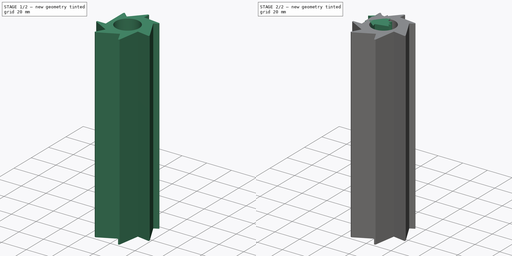
[diagram: build sequence overview — one tinted view per stage of 2, left to right]
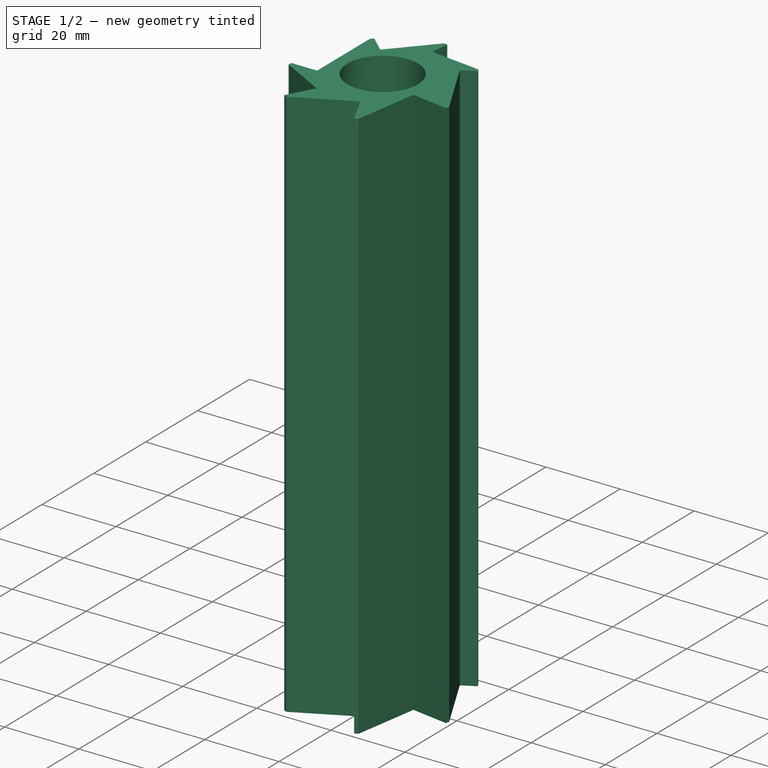
[diagram: stage 1 of 2 — iso view after this stage's code; geometry added in this stage tinted green]
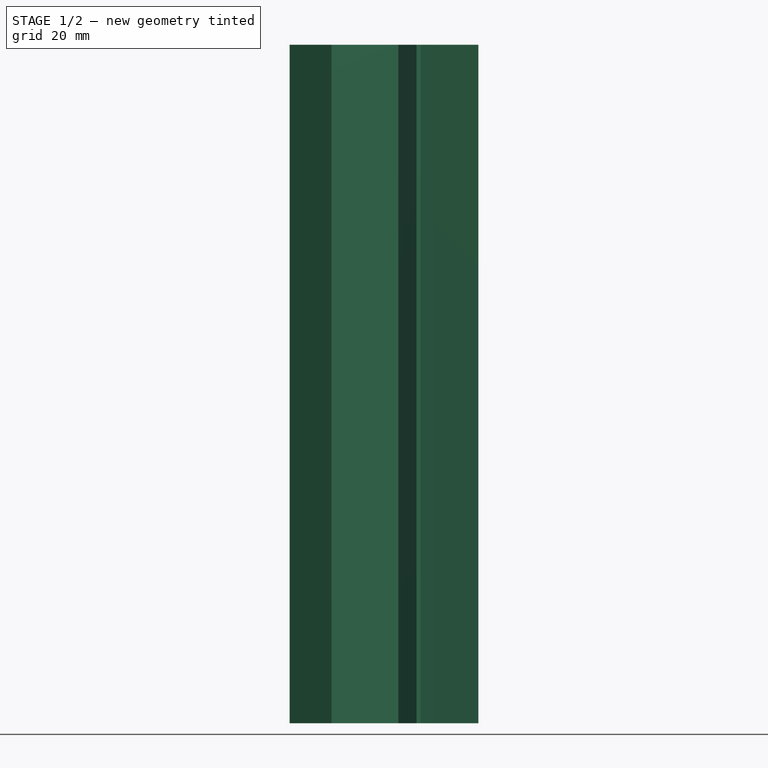
[diagram: stage 1 of 2 — front view after this stage's code; geometry added in this stage tinted green]
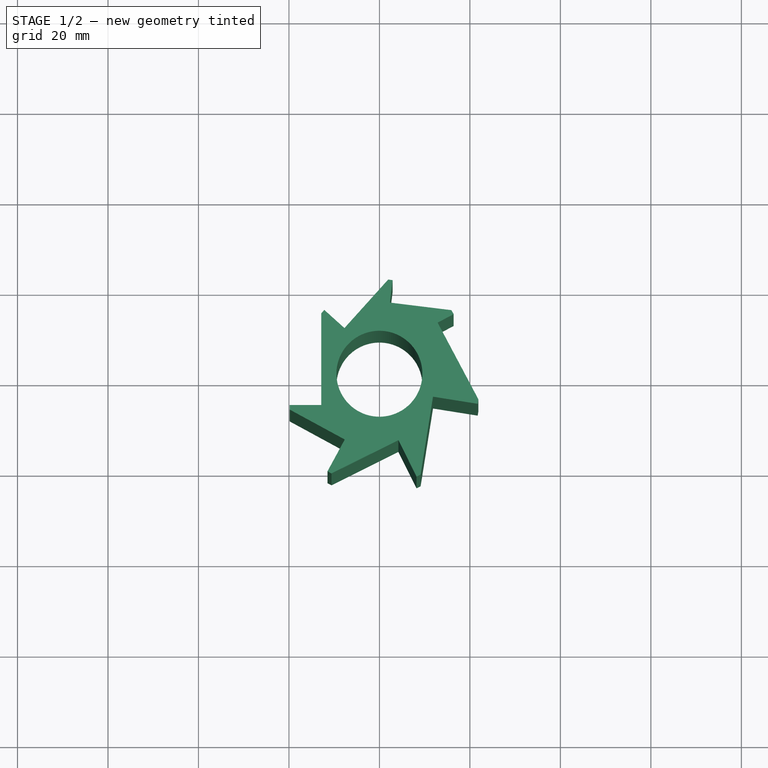
[diagram: stage 1 of 2 — top view after this stage's code; geometry added in this stage tinted green]
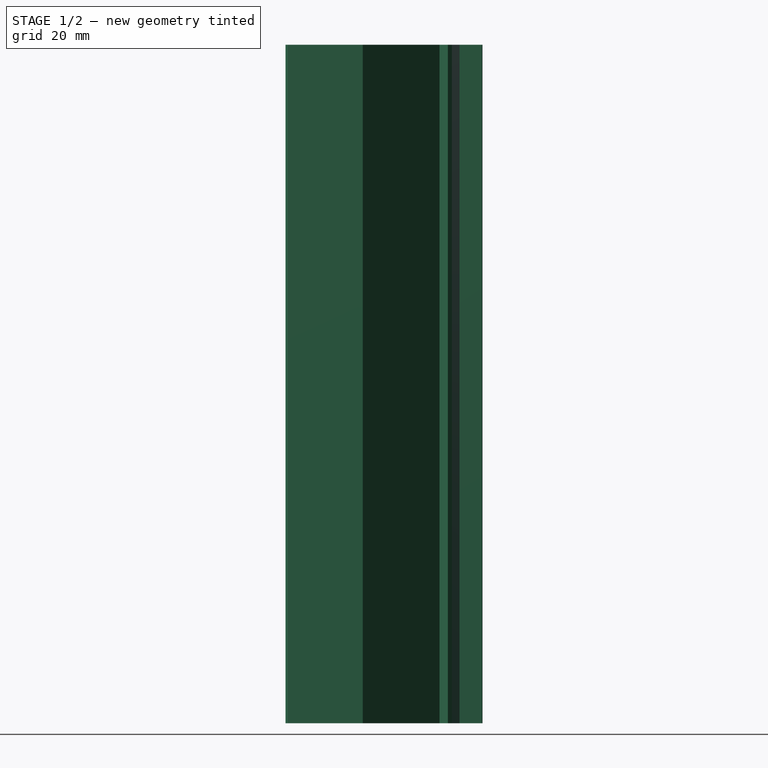
[diagram: stage 1 of 2 — right view after this stage's code; geometry added in this stage tinted green]
FCSTD DOCUMENT  (FreeCAD 1.1R42461 (Git))
Label: Tracette Herisson v1
License: Creative Commons Attribution-NonCommercial-ShareAlike 4.0
LicenseURL: https://creativecommons.org/licenses/by-nc-sa/4.0/
objects: App::Point×3, Sketcher::SketchObject×3, PartDesign::Body×3, PartDesign::Pad×2, App::VarSet×1
note: 15 computed .brp shape members not serialized (recipe doc carries the construction recipe); baked Part::Feature solids carry a one-line shape summary decoded from their .brp

FEATURE [PartDesign::Body] Body
  AllowCompound = false
  Group = -> [Sketch,Pad]
  Origin = -> Origin
  Tip = -> Pad
FEATURE [App::Point] Origin003  label="Origine002"
  Role = Origin
FEATURE [Sketcher::SketchObject] Sketch001
  ArcFitTolerance = 1e-06
  AttachmentSupport = -> [Origin002]
  ExternalTypes = [0]
  FullyConstrained = true
  MakeInternals = false
  MapMode = 5
  expr: Constraints[12] = VarSet.Start + 4 * VarSet.Step
  expr: Constraints[13] = VarSet.Start + 5 * VarSet.Step
  expr: Constraints[19] = VarSet.Start + 6 * VarSet.Step
  expr: Constraints[1] = VarSet.Start + 2 * VarSet.Step
  expr: Constraints[26] = VarSet.Start + 7 * VarSet.Step
  expr: Constraints[27] = VarSet.Start + 8 * VarSet.Step
  expr: Constraints[37] = VarSet.Rebord
  expr: Constraints[89] = VarSet.Start + 3 * VarSet.Step
  sketch-geometry (37):
    g0: LineSegment StartX=12.8715 StartY=11.2952 StartZ=0 EndX=16.4039 EndY=13.172 EndZ=0
    g1: LineSegment StartX=2.31126 StartY=15.7319 StartZ=0 EndX=2.92206 EndY=20.6944 EndZ=0
    g2: LineSegment StartX=2.92206 StartY=20.6944 StartZ=0 EndX=1.92955 EndY=20.8166 EndZ=0
    g3: LineSegment StartX=1.92955 StartY=20.8166 StartZ=0 EndX=-7.72675 EndY=10.0985 EndZ=0
    g4: LineSegment StartX=-7.72675 StartY=10.0985 StartZ=0 EndX=-12.1844 EndY=14.1146 EndZ=0
    g5: LineSegment StartX=-12.1844 StartY=14.1146 StartZ=0 EndX=-12.8538 EndY=13.3717 EndZ=0
    g6: LineSegment StartX=-12.8538 StartY=13.3717 StartZ=0 EndX=-12.8538 EndY=-6.91169 EndZ=0
    g7: LineSegment StartX=-12.8538 StartY=-6.91169 StartZ=0 EndX=-19.8538 EndY=-6.91169 EndZ=0
    g8: LineSegment StartX=-19.8538 StartY=-6.91169 StartZ=0 EndX=-19.8538 EndY=-7.91169 EndZ=0
    g9: LineSegment StartX=-19.8538 StartY=-7.91169 StartZ=0 EndX=-7.6571 EndY=-14.5417 EndZ=0
    g10: LineSegment StartX=-7.6571 StartY=-14.5417 StartZ=0 EndX=-11.4778 EndY=-21.5704 EndZ=0
    g11: LineSegment StartX=-11.4778 StartY=-21.5704 StartZ=0 EndX=-10.5992 EndY=-22.048 EndZ=0
    g12: LineSegment StartX=-10.5992 StartY=-22.048 StartZ=0 EndX=4.19501 EndY=-14.6809 EndZ=0
    g13: LineSegment StartX=4.19501 StartY=-14.6809 StartZ=0 EndX=8.20683 EndY=-22.7373 EndZ=0
    g14: LineSegment StartX=8.20683 StartY=-22.7373 StartZ=0 EndX=9.10199 EndY=-22.2915 EndZ=0
    g15: LineSegment StartX=9.10199 StartY=-22.2915 StartZ=0 EndX=11.8486 EndY=-5.07389 EndZ=0
    g16: LineSegment StartX=11.8486 StartY=-5.07389 StartZ=0 EndX=21.7238 EndY=-6.64922 EndZ=0
    g17: LineSegment StartX=21.7238 StartY=-6.64922 StartZ=0 EndX=21.8813 EndY=-5.66171 EndZ=0
    g18: LineSegment StartX=12.8715 StartY=11.2952 StartZ=0 EndX=21.8813 EndY=-5.66171 EndZ=0
    g19: LineSegment [constr] StartX=9.10199 StartY=-22.2915 StartZ=0 EndX=25.4574 EndY=-14.147 EndZ=0
    g20: LineSegment [constr] StartX=21.7238 StartY=-6.64922 StartZ=0 EndX=25.4574 EndY=-14.147 EndZ=0
    g21: LineSegment [constr] StartX=-10.5992 StartY=-22.048 StartZ=0 EndX=4.20655 EndY=-30.0963 EndZ=0
    g22: LineSegment [constr] StartX=4.20655 StartY=-30.0963 StartZ=0 EndX=8.20683 EndY=-22.7373 EndZ=0
    g23: LineSegment [constr] StartX=-19.8538 StartY=-7.91169 StartZ=0 EndX=-19.8538 EndY=-21.5704 EndZ=0
    g24: LineSegment [constr] StartX=-19.8538 StartY=-21.5704 StartZ=0 EndX=-11.4778 EndY=-21.5704 EndZ=0
    g25: LineSegment [constr] StartX=-12.8538 StartY=13.3717 StartZ=0 EndX=-26.0767 EndY=-1.30525 EndZ=0
    g26: LineSegment [constr] StartX=-19.8538 StartY=-6.91169 StartZ=0 EndX=-26.0767 EndY=-1.30525 EndZ=0
    g27: LineSegment [constr] StartX=1.92955 StartY=20.8166 StartZ=0 EndX=-11.1612 EndY=22.4278 EndZ=0
    g28: LineSegment [constr] StartX=-11.1612 StartY=22.4278 StartZ=0 EndX=-12.1844 EndY=14.1146 EndZ=0
    g29: LineSegment StartX=16.4039 StartY=13.172 StartZ=0 EndX=15.9347 EndY=14.0551 EndZ=0
    g30: LineSegment StartX=15.9347 StartY=14.0551 StartZ=0 EndX=2.31126 EndY=15.7319 EndZ=0
    g31: LineSegment [constr] StartX=21.8813 StartY=-5.66171 StartZ=0 EndX=24.6753 EndY=11.8525 EndZ=0
    g32: LineSegment [constr] StartX=24.6753 StartY=11.8525 StartZ=0 EndX=16.4039 EndY=13.172 EndZ=0
    g33: LineSegment [constr] StartX=15.9347 StartY=14.0551 StartZ=0 EndX=10.3188 EndY=24.6246 EndZ=0
    g34: LineSegment [constr] StartX=10.3188 StartY=24.6246 StartZ=0 EndX=2.92206 EndY=20.6944 EndZ=0
    g35: Circle CenterX=0 CenterY=0 CenterZ=0 NormalX=0 NormalY=0 NormalZ=1 AngleXU=0 Radius=9.5
    g36: Circle [constr] CenterX=0 CenterY=0 CenterZ=0 NormalX=0 NormalY=0 NormalZ=1 AngleXU=0 Radius=12.5
  constraints (106):
    c: Coincident(g2,g3)
    c: Distance(g0,g0) = 4
    c: Coincident(g3,g4)
    c: Coincident(g4,g5)
    c: Coincident(g5,g6)
    c: Coincident(g6,g7)
    c: Coincident(g7,g8)
    c: Coincident(g8,g9)
    c: Equal(g2,g5)
    c: Equal(g5,g8)
    c: Perpendicular(g5,g4)
    c: Perpendicular(g7,g8)
    c: Distance(g4,g4) = 6
    c: Distance(g7,g7) = 7
    c: Coincident(g9,g10)
    c: Coincident(g10,g11)
    c: Coincident(g11,g12)
    c: Equal(g8,g11)
    c: Perpendicular(g10,g11)
    c: Distance(g10,g10) = 8
    c: Coincident(g12,g13)
    c: Coincident(g13,g14)
    c: Coincident(g14,g15)
    c: Coincident(g15,g16)
    c: Equal(g11,g14)
    c: Perpendicular(g14,g13)
    c: Distance(g13,g13) = 9
    c: Distance(g16,g16) = 10
    c: Perpendicular(g13,g12)
    c: Perpendicular(g9,g10)
    c: Perpendicular(g6,g7)
    c: Perpendicular(g3,g4)
    c: Perpendicular(g15,g16)
    c: Coincident(g17,g16)
    c: Perpendicular(g17,g16)
    c: Equal(g17,g14)
    c: Coincident(g18,g17)
    c: Distance(g11,g11) = 1
    c: Coincident(g19,g14)
    c: Coincident(g20,g16)
    c: Coincident(g20,g19)
    c: Perpendicular(g20,g19)
    c: PointOnObject(g13,g19)
    c: Coincident(g21,g11)
    c: Coincident(g22,g21)
    c: Coincident(g22,g13)
    c: Perpendicular(g22,g21)
    c: PointOnObject(g10,g21)
    c: Equal(g22,g20)
    c: Coincident(g23,g8)
    c: Vertical(g23)
    c: Coincident(g24,g23)
    c: Coincident(g24,g10)
    c: Perpendicular(g23,g24)
    c: PointOnObject(g7,g23)
    c: Equal(g24,g22)
    c: Coincident(g25,g5)
    c: Coincident(g26,g7)
    c: Coincident(g26,g25)
    c: PointOnObject(g4,g25)
    c: Perpendicular(g26,g25)
    c: Equal(g26,g24)
    c: Coincident(g2,g27)
    c: Coincident(g27,g28)
    c: Coincident(g28,g4)
    c: Perpendicular(g27,g28)
    c: Equal(g26,g28)
    c: PointOnObject(g2,g27)
    c: Coincident(g29,g0)
    c: Coincident(g30,g29)
    c: Coincident(g30,g1)
    c: Coincident(g17,g31)
    c: PointOnObject(g16,g31)
    c: Coincident(g18,g0)
    c: Coincident(g32,g31)
    c: Coincident(g32,g0)
    c: Perpendicular(g32,g31)
    c: Equal(g20,g32)
    c: Perpendicular(g0,g18)
    c: Equal(g17,g29)
    c: Perpendicular(g0,g29)
    c: Coincident(g29,g33)
    c: Coincident(g33,g34)
    c: Coincident(g34,g1)
    c: Perpendicular(g34,g33)
    c: Equal(g34,g32)
    c: PointOnObject(g0,g33)
    c: Coincident(g2,g1)
    c: Perpendicular(g1,g2)
    c: Distance(g1,g1) = 5
    c: Angle(g6,g4) = 0.837465
    c: Angle(g12,g10) = 0.610865  'Alpha'
    c: Angle(g9,g7) = 0.49791
    c: Angle(g15,g13) = 0.620214
    c: Angle(g30,g0) = 0.610865
    c: Angle(g3,g1) = 0.610865
    c: Angle(g18,g16) = 0.924204
    c: Perpendicular(g1,g30)
    c: Coincident(g35,g-1)
    c: Coincident(g36,g35)
    c: Diameter(g36) = 25
    c: Distance(g35,g36) = 3
    c: Distance(g1,g4) = 15
    c: Distance(g16,g0) = 20
    c: Tangent(g15,g36)
    c: Tangent(g3,g36)
FEATURE [PartDesign::Pad] Pad001
  Direction = (0,0,1)
  Length = 150
  Length2 = 10
  Profile = -> Sketch001
  ReferenceAxis = -> Sketch001 [N_Axis]
  Refine = true
  Suppressed = false
  Type = 0
FEATURE [PartDesign::Body] Body001  label="Corps"
  AllowCompound = false
  Group = -> [Sketch001,Pad001]
  Origin = -> Origin002
  Tip = -> Pad001
FEATURE [App::Point] Origin005  label="Origine004"
  Role = Origin
FEATURE [Sketcher::SketchObject] Sketch002
  ArcFitTolerance = 1e-06
  AttachmentSupport = -> [Origin004]
  ExternalTypes = [0]
  FullyConstrained = false
  MakeInternals = false
  MapMode = 5
  sketch-geometry (15):
    g0: Circle [constr] CenterX=0 CenterY=0 CenterZ=0 NormalX=0 NormalY=0 NormalZ=1 AngleXU=0 Radius=12.5
    g1: LineSegment StartX=10.9111 StartY=6.09907 StartZ=0 EndX=15.2755 EndY=8.5387 EndZ=0
    g2: LineSegment [constr] StartX=10.9111 StartY=6.09907 StartZ=0 EndX=35.1253 EndY=-37.2196 EndZ=0
    g3: LineSegment StartX=7.91278 StartY=10.7029 StartZ=0 EndX=10.7329 EndY=20.297 EndZ=0
    g4: LineSegment [constr] StartX=7.91278 StartY=10.7029 StartZ=0 EndX=15.2755 EndY=8.5387 EndZ=0
    g5: LineSegment StartX=-3.87616 StartY=12.1506 StartZ=0 EndX=-11.1815 EndY=25.2514 EndZ=0
    g6: LineSegment [constr] StartX=-3.87616 StartY=12.1506 StartZ=0 EndX=10.7329 EndY=20.297 EndZ=0
    g7: LineSegment StartX=-12.0428 StartY=8.97217 StartZ=0 EndX=-32.0149 EndY=10.0288 EndZ=0
    g8: LineSegment [constr] StartX=-12.0428 StartY=8.97217 StartZ=0 EndX=-11.1815 EndY=25.2514 EndZ=0
    g9: LineSegment StartX=-13.3809 StartY=-5.20601 StartZ=0 EndX=-29.2049 EndY=-24.5606 EndZ=0
    g10: LineSegment [constr] StartX=-13.3809 StartY=-5.20601 StartZ=0 EndX=-32.0149 EndY=10.0288 EndZ=0
    g11: LineSegment [constr] StartX=-19.5454 StartY=-20.864 StartZ=0 EndX=-29.2049 EndY=-24.5606 EndZ=0
    g12: LineSegment StartX=-19.5454 StartY=-20.864 StartZ=0 EndX=-8.823 EndY=-48.8824 EndZ=0
    g13: LineSegment StartX=3.35481 StartY=-22.5351 StartZ=0 EndX=35.1253 EndY=-37.2196 EndZ=0
    g14: LineSegment [constr] StartX=3.35481 StartY=-22.5351 StartZ=0 EndX=-8.823 EndY=-48.8824 EndZ=0
  constraints (38):
    c: Diameter(g0) = 25
    c: Coincident(g0,g-1)
    c: PointOnObject(g0,g1)
    c: Coincident(g2,g1)
    c: Tangent(g2,g0)
    c: Perpendicular(g1,g2)
    c: Coincident(g4,g3)
    c: Coincident(g6,g5)
    c: Coincident(g8,g7)
    c: Coincident(g10,g9)
    c: Coincident(g14,g13)
    c: Perpendicular(g3,g4)
    c: Perpendicular(g5,g6)
    c: Perpendicular(g7,g8)
    c: Perpendicular(g9,g10)
    c: Perpendicular(g13,g14)
    c: Distance(g1,g1) = 5
    c: Distance(g3,g3) = 10
    c: Tangent(g4,g0)
    c: Distance(g5,g5) = 15
    c: Tangent(g0,g6)
    c: Distance(g7,g7) = 20
    c: Tangent(g8,g0)
    c: Coincident(g5,g8)
    c: Coincident(g6,g3)
    c: Coincident(g4,g1)
    c: Coincident(g10,g7)
    c: Coincident(g11,g9)
    c: Coincident(g12,g14)
    c: Coincident(g13,g2)
    c: Tangent(g14,g0)
    c: Tangent(g11,g0)
    c: Tangent(g10,g0)
    c: Distance(g9,g9) = 25
    c: Distance(g12,g12) = 30
    c: Coincident(g11,g12)
    c: Perpendicular(g12,g11)
    c: Distance(g13,g13) = 35
FEATURE [PartDesign::Body] Body002  label="Corps001"
  AllowCompound = false
  Group = -> [Sketch002]
  Origin = -> Origin004
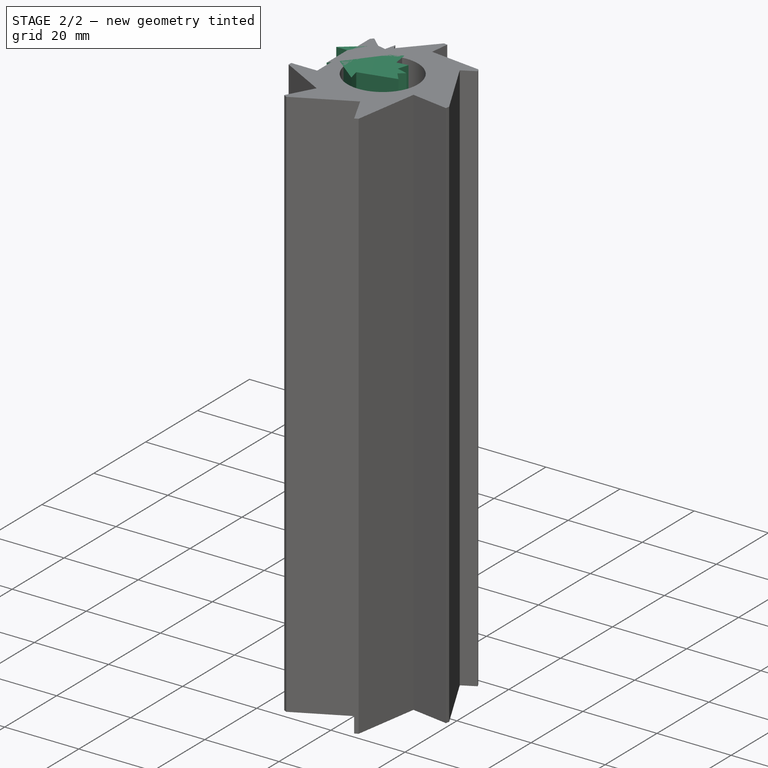
[diagram: stage 2 of 2 — iso view after this stage's code; geometry added in this stage tinted green]
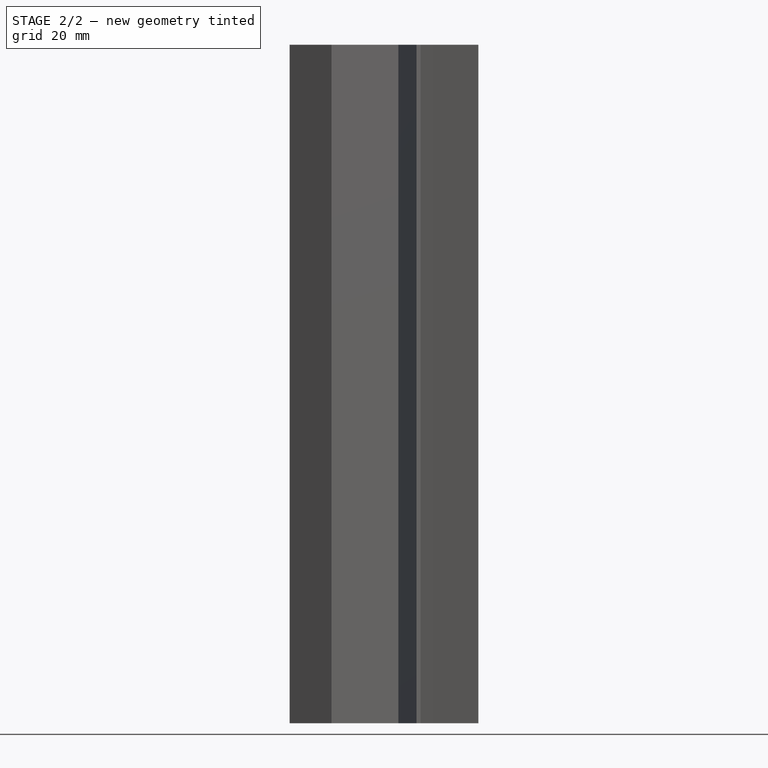
[diagram: stage 2 of 2 — front view after this stage's code; geometry added in this stage tinted green]
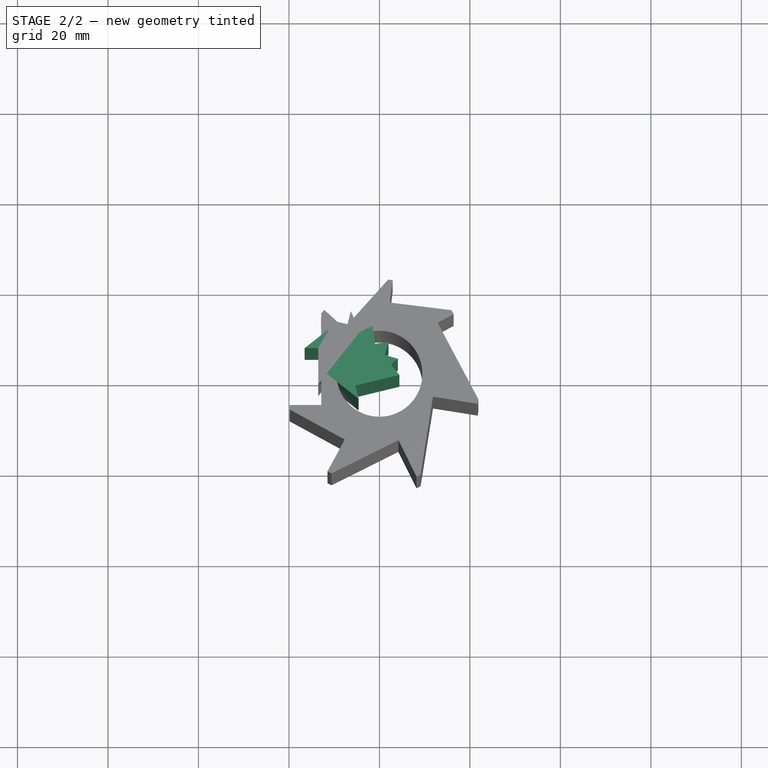
[diagram: stage 2 of 2 — top view after this stage's code; geometry added in this stage tinted green]
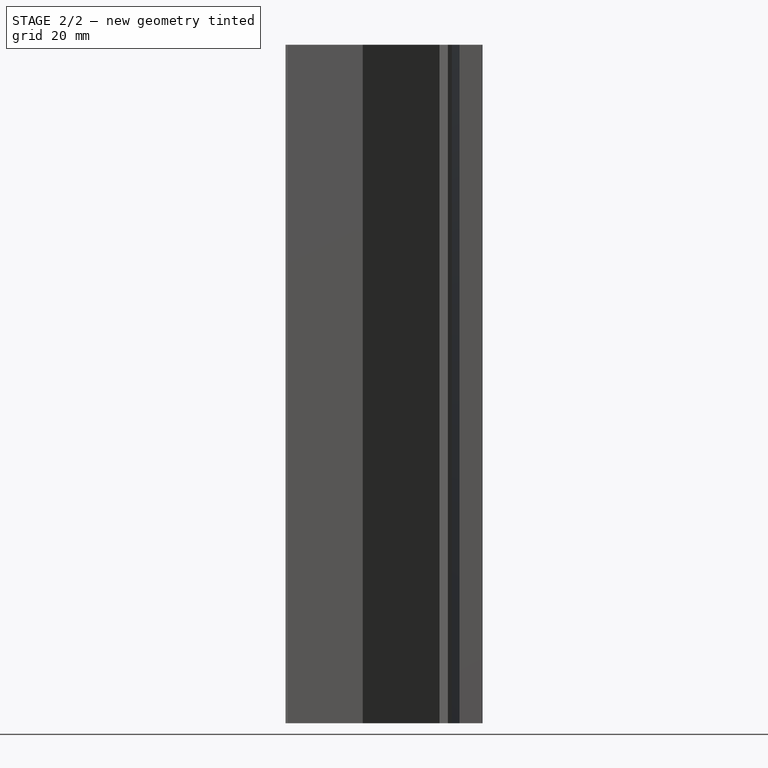
[diagram: stage 2 of 2 — right view after this stage's code; geometry added in this stage tinted green]
FEATURE [App::Point] Origin001  label="Origine"
  Role = Origin
FEATURE [Sketcher::SketchObject] Sketch
  ArcFitTolerance = 1e-06
  AttachmentSupport = -> [Origin]
  ExternalTypes = [0]
  FullyConstrained = true
  MakeInternals = false
  MapMode = 5
  expr: Constraints[11] = VarSet.Start
  expr: Constraints[12] = VarSet.Start + 1 * VarSet.Step
  expr: Constraints[13] = VarSet.Start + 2 * VarSet.Step
  expr: Constraints[17] = VarSet.Start + 3 * VarSet.Step
  expr: Constraints[31] = VarSet.Start + 4 * VarSet.Step
  expr: Constraints[32] = VarSet.Start + 5 * VarSet.Step
  expr: Constraints[33] = VarSet.Start + 6 * VarSet.Step
  expr: Constraints[34] = VarSet.Start + 7 * VarSet.Step
  expr: Constraints[37] = VarSet.Start + 8 * VarSet.Step
  sketch-geometry (23):
    g0: LineSegment StartX=2.5216 StartY=2.0579 StartZ=0 EndX=4.07108 EndY=3.32245 EndZ=0
    g1: LineSegment StartX=4.07108 StartY=3.32245 StartZ=0 EndX=1.18684 EndY=4.14775 EndZ=0
    g2: LineSegment StartX=1.18684 StartY=4.14775 StartZ=0 EndX=2.01214 EndY=7.032 EndZ=0
    g3: LineSegment StartX=2.01214 StartY=7.032 StartZ=0 EndX=-0.956841 EndY=6.60168 EndZ=0
    g4: LineSegment StartX=-0.956841 StartY=6.60168 StartZ=0 EndX=-1.5306 EndY=10.5603 EndZ=0
    g5: LineSegment StartX=-1.5306 StartY=10.5603 StartZ=0 EndX=-4.25884 EndY=9.31264 EndZ=0
    g6: LineSegment StartX=-4.25884 StartY=9.31264 StartZ=0 EndX=-6.3383 EndY=13.8597 EndZ=0
    g7: LineSegment StartX=2.5216 StartY=2.0579 StartZ=0 EndX=4.41843 EndY=-0.266329 EndZ=0
    g8: LineSegment StartX=-6.3383 StartY=13.8597 StartZ=0 EndX=-7.04456 EndY=10.944 EndZ=0
    g9: LineSegment StartX=-7.04456 StartY=10.944 StartZ=0 EndX=-12.8759 EndY=12.3565 EndZ=0
    g10: LineSegment StartX=-12.8759 StartY=12.3565 StartZ=0 EndX=-11.021 EndY=9.99871 EndZ=0
    g11: LineSegment StartX=-11.021 StartY=9.99871 StartZ=0 EndX=-16.5227 EndY=5.67063 EndZ=0
    g12: LineSegment StartX=-16.5227 StartY=5.67063 StartZ=0 EndX=-13.5227 EndY=5.67063 EndZ=0
    g13: LineSegment StartX=-13.5227 StartY=5.67063 StartZ=0 EndX=-13.5227 EndY=-2.32937 EndZ=0
    g14: LineSegment StartX=-13.5227 StartY=-2.32937 StartZ=0 EndX=-11.6678 EndY=0.0284659 EndZ=0
    g15: LineSegment StartX=-11.6678 StartY=0.0284659 StartZ=0 EndX=-4.59426 EndY=-5.5362 EndZ=0
    g16: LineSegment StartX=-4.59426 StartY=-5.5362 StartZ=0 EndX=-5.30051 EndY=-2.62052 EndZ=0
    g17: LineSegment StartX=-5.30051 StartY=-2.62052 StartZ=0 EndX=4.41843 EndY=-0.266329 EndZ=0
    g18: LineSegment [constr] StartX=-13.5227 StartY=5.67063 StartZ=0 EndX=-13.5227 EndY=8.03071 EndZ=0
    g19: LineSegment [constr] StartX=-11.021 StartY=9.99871 StartZ=0 EndX=-9.16615 EndY=11.4579 EndZ=0
    g20: LineSegment [constr] StartX=-7.04456 StartY=10.944 StartZ=0 EndX=-4.75082 EndY=10.3884 EndZ=0
    g21: LineSegment [constr] StartX=-11.6678 StartY=0.0284659 StartZ=0 EndX=-13.5227 EndY=1.48769 EndZ=0
    g22: LineSegment [constr] StartX=-5.30051 StartY=-2.62052 StartZ=0 EndX=-7.59426 EndY=-3.17613 EndZ=0
  constraints (71):
    c: Coincident(g0,g1)
    c: Coincident(g1,g2)
    c: Coincident(g2,g3)
    c: Coincident(g3,g4)
    c: Coincident(g4,g5)
    c: Coincident(g5,g6)
    c: PointOnObject(g-1,g0)
    c: PointOnObject(g-1,g2)
    c: PointOnObject(g-1,g4)
    c: PointOnObject(g-1,g6)
    c: Coincident(g7,g0)
    c: Distance(g0,g0) = 2
    c: Distance(g2,g2) = 3
    c: Distance(g4,g4) = 4
    c: Perpendicular(g4,g3)
    c: Perpendicular(g1,g2)
    c: Perpendicular(g0,g7)
    c: Distance(g6,g6) = 5
    c: Equal(g7,g1)
    c: Equal(g1,g3)
    c: Equal(g3,g5)
    c: Perpendicular(g6,g5)
    c: Distance(g7,g7) = 3
    c: Coincident(g6,g8)
    c: Coincident(g8,g9)
    c: Coincident(g9,g10)
    c: Coincident(g10,g11)
    c: Coincident(g11,g12)
    c: Coincident(g12,g13)
    c: Coincident(g13,g14)
    c: Coincident(g14,g15)
    c: Distance(g9,g9) = 6
    c: Distance(g11,g11) = 7
    c: Distance(g13,g13) = 8
    c: Distance(g15,g15) = 9
    c: Coincident(g17,g16)
    c: Coincident(g17,g7)
    c: Distance(g17,g17) = 10
    c: Equal(g5,g8)
    c: Perpendicular(g8,g9)
    c: Perpendicular(g10,g11)
    c: Perpendicular(g12,g13)
    c: Perpendicular(g14,g15)
    c: Perpendicular(g17,g16)
    c: Equal(g7,g16)
    c: Equal(g8,g10)
    c: Equal(g10,g12)
    c: Equal(g12,g14)
    c: Coincident(g15,g16)
    c: Coincident(g18,g12)
    c: PointOnObject(g18,g11)
    c: Vertical(g18)
    c: Coincident(g19,g10)
    c: PointOnObject(g19,g9)
    c: Perpendicular(g10,g19)
    c: Perpendicular(g18,g12)
    c: Equal(g18,g19)
    c: Coincident(g20,g8)
    c: PointOnObject(g20,g6)
    c: Perpendicular(g8,g20)
    c: Equal(g20,g19)
    c: Coincident(g21,g14)
    c: PointOnObject(g21,g13)
    c: Perpendicular(g21,g14)
    c: Equal(g18,g21)
    c: Coincident(g22,g16)
    c: PointOnObject(g22,g15)
    c: Perpendicular(g16,g22)
    c: Equal(g21,g22)
    c: Angle(g7,g17) = 1.12396
    c: Angle(g10,g9) = 0.666573
FEATURE [App::VarSet] VarSet
  Rebord = 1
  Start = 2
  Step = 1
  Stop_Height = 3
FEATURE [PartDesign::Pad] Pad
  Direction = (0,0,1)
  Length = 150
  Length2 = 10
  Profile = -> Sketch
  ReferenceAxis = -> Sketch [N_Axis]
  Refine = true
  Suppressed = false
  Type = 0
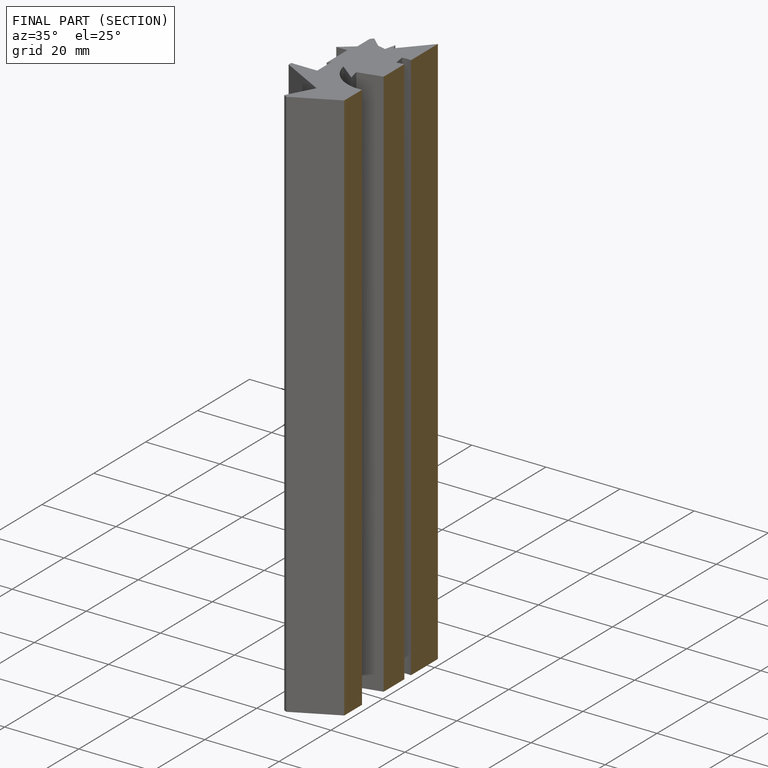
[diagram: finished part — half-section view (interior)]
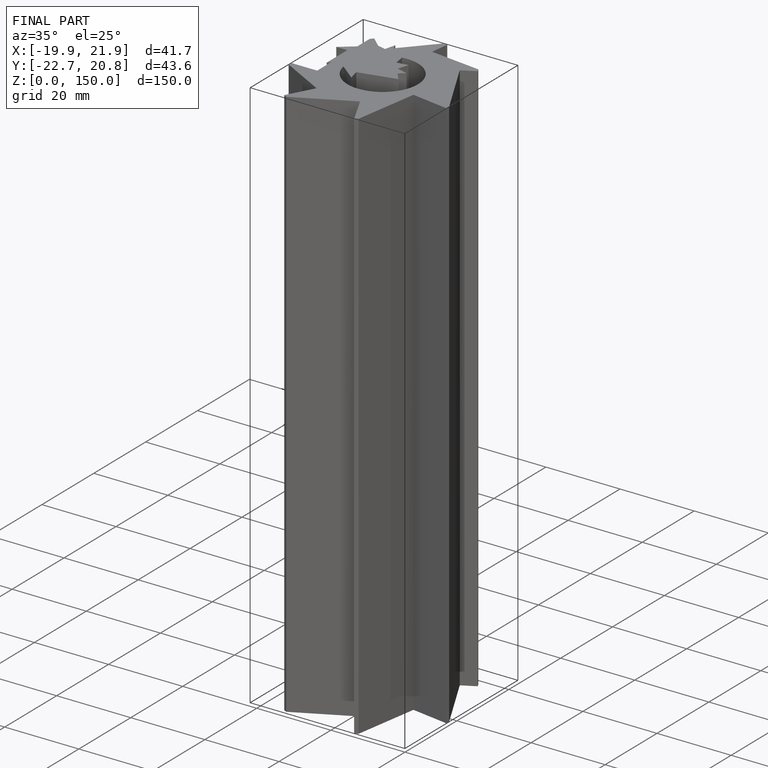
[diagram: finished part — iso view with bounding-box wireframe]
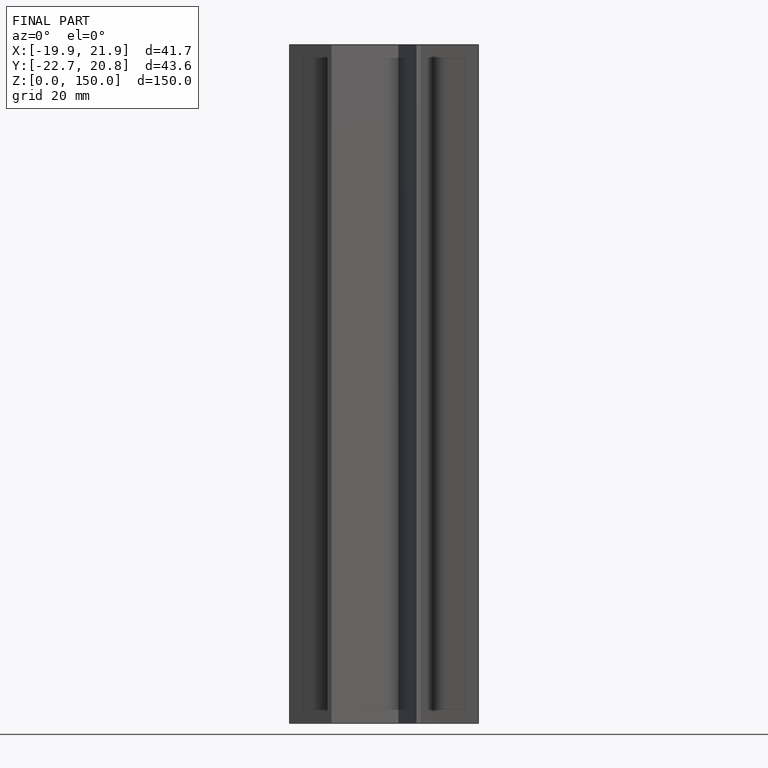
[diagram: finished part — front view with bounding-box wireframe]
